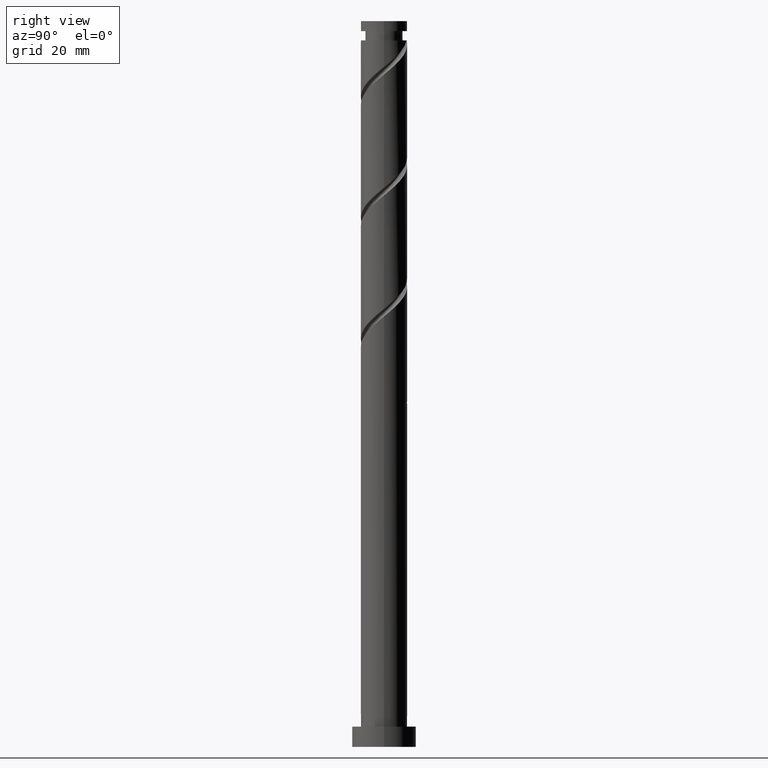
[diagram: clean part render]
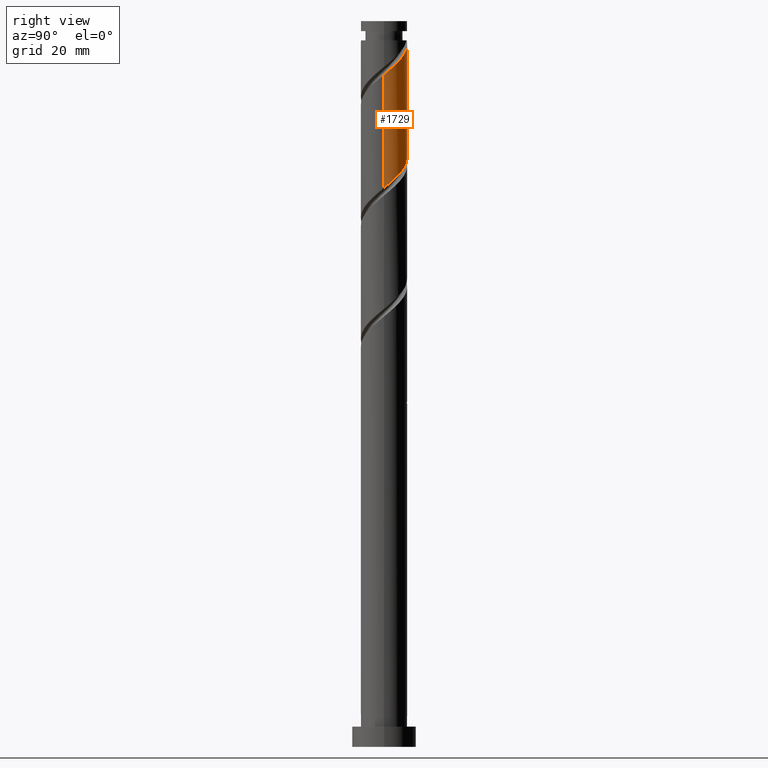
[diagram: same view with one face highlighted and labeled with its STEP entity id]
A machine part, right view. The second image highlights one B-rep face of the part: STEP entity #1729.
In plain terms, the highlighted cylindrical surface (edge-blend (fillet) strip) has radius 8 mm, axis along (-0, -0, -1).
Its self-contained STEP definition (entity closure, byte-faithful):
#110 = CARTESIAN_POINT ( 'NONE',  ( 8.000000000000001776, 0.6500515082963604918, 193.1168595104637973 ) ) ;
#117 = DIRECTION ( 'NONE',  ( -0.000000000000000000, -0.000000000000000000, -1.000000000000000000 ) ) ;
#129 = CARTESIAN_POINT ( 'NONE',  ( 7.356541166943314281, 3.143453842363254758, 195.2556471536338449 ) ) ;
#154 = CARTESIAN_POINT ( 'NONE',  ( 4.007267575056607356, 6.924002208397983082, 238.5248779228646185 ) ) ;
#257 = CARTESIAN_POINT ( 'NONE',  ( -0.3305149512138251811, 7.993169575770560975, 203.2684676664543417 ) ) ;
#273 = CYLINDRICAL_SURFACE ( 'NONE', #560, 8.000000000000000000 ) ;
#287 = CARTESIAN_POINT ( 'NONE',  ( 1.591979899370595364, 7.839999999999999858, 201.6659035638902253 ) ) ;
#289 =( BOUNDED_CURVE ( )  B_SPLINE_CURVE ( 2, ( #1422, #1574, #864, #851, #1431, #438, #424, #699, #1689, #294, #154, #872, #1816, #1438, #1717, #1282, #1272 ),
 .UNSPECIFIED., .F., .T. ) 
 B_SPLINE_CURVE_WITH_KNOTS ( ( 3, 2, 2, 2, 2, 2, 2, 2, 3 ),
 ( 0.6795271625973834384, 0.6826923076923077094, 0.6923076923076922906, 0.7019230769230768718, 0.7115384615384615641, 0.7211538461538461453, 0.7307692307692308376, 0.7403846153846154188, 0.7500000000000000000 ),
 .UNSPECIFIED. ) 
 CURVE ( )  GEOMETRIC_REPRESENTATION_ITEM ( )  RATIONAL_B_SPLINE_CURVE ( ( 0.9061636035682794077, 0.9069090390690679460, 0.9090909090909243817, 0.9024626128164281447, 0.9090909090909243817, 0.9024626128164281447, 0.9090909090909243817, 0.9024626128164281447, 0.9090909090909243817, 0.9024626128164281447, 0.9090909090909243817, 0.9024626128164281447, 0.9090909090909243817, 0.9024626128164281447, 0.9090909090909243817, 0.9024626128164281447, 0.9090909090909243817 ) ) 
 REPRESENTATION_ITEM ( '' )  );
#294 = CARTESIAN_POINT ( 'NONE',  ( 4.847993655035605087, 6.437431832132348042, 237.7235958715825461 ) ) ;
#295 = CARTESIAN_POINT ( 'NONE',  ( 7.895051195043946812, 1.291575250473281811, 193.6530830510697569 ) ) ;
#342 = CARTESIAN_POINT ( 'NONE',  ( -7.974729545032076317, 0.6353650002891837456, 212.8838522818389549 ) ) ;
#393 = CARTESIAN_POINT ( 'NONE',  ( -7.999999999999983125, 0.000000000000000000, 243.3325702305569109 ) ) ;
#399 = FACE_OUTER_BOUND ( 'NONE', #1793, .T. ) ;
#404 = CARTESIAN_POINT ( 'NONE',  ( -5.547845850269218282, 5.763801386381266489, 208.0761599741466341 ) ) ;
#410 = CARTESIAN_POINT ( 'NONE',  ( 0.000000000000000000, 0.000000000000000000, 250.0000000000000000 ) ) ;
#424 = CARTESIAN_POINT ( 'NONE',  ( 6.766003490263366338, 4.268629378353683279, 235.3197497177363857 ) ) ;
#425 = CARTESIAN_POINT ( 'NONE',  ( 0.6400315509080708454, 8.033301356631552537, 202.4671856151722977 ) ) ;
#438 = CARTESIAN_POINT ( 'NONE',  ( 7.284308935023878107, 3.447087816077164302, 234.5184676664543133 ) ) ;
#460 = CARTESIAN_POINT ( 'NONE',  ( 8.000000000000000000, 9.797174393178825657E-16, 250.0000000000000000 ) ) ;
#481 = CARTESIAN_POINT ( 'NONE',  ( -8.000000000000000000, -1.794712623994423078E-15, 213.4104921064487712 ) ) ;
#530 = CARTESIAN_POINT ( 'NONE',  ( -8.000000000000000000, -1.794712623994423078E-15, 213.4104921064487428 ) ) ;
#541 = CARTESIAN_POINT ( 'NONE',  ( 8.000000000000014211, 5.114930978384066843E-15, 231.5879816879983935 ) ) ;
#551 = CARTESIAN_POINT ( 'NONE',  ( 5.053057863439632591, 6.202145292455741199, 198.4607753587620493 ) ) ;
#560 = AXIS2_PLACEMENT_3D ( 'NONE', #410, #828, #1121 ) ;
#563 = CARTESIAN_POINT ( 'NONE',  ( -6.766003490263353903, 4.268629378353675285, 209.6787240767108074 ) ) ;
#569 = VERTEX_POINT ( 'NONE', #530 ) ;
#606 = EDGE_CURVE ( 'NONE', #1258, #1049, #289, .T. ) ;
#677 = CARTESIAN_POINT ( 'NONE',  ( -7.897582266626952396, 1.603672477308133004, 212.0825702305569109 ) ) ;
#691 = CARTESIAN_POINT ( 'NONE',  ( -7.590945600825408590, 2.525380146692649319, 211.2812881792748669 ) ) ;
#699 = CARTESIAN_POINT ( 'NONE',  ( 6.247698045502859010, 5.090170940630192042, 236.1210317690184297 ) ) ;
#700 = CARTESIAN_POINT ( 'NONE',  ( 8.000000000000000000, -8.734268103439527594E-15, 192.5771587731154284 ) ) ;
#798 = CARTESIAN_POINT ( 'NONE',  ( -8.000000000000000000, 0.000000000000000000, 250.0000000000000000 ) ) ;
#818 = ORIENTED_EDGE ( 'NONE', *, *, #1104, .F. ) ;
#825 = EDGE_CURVE ( 'NONE', #1258, #1532, #1720, .T. ) ;
#828 = DIRECTION ( 'NONE',  ( -0.000000000000000000, -0.000000000000000000, -1.000000000000000000 ) ) ;
#851 = CARTESIAN_POINT ( 'NONE',  ( 7.897582266626965719, 1.603672477308132560, 232.9159035638901969 ) ) ;
#864 = CARTESIAN_POINT ( 'NONE',  ( 7.974729545032094080, 0.6353650002891780835, 232.1146215126082382 ) ) ;
#872 = CARTESIAN_POINT ( 'NONE',  ( 3.166541495077610957, 7.410572584663614570, 239.3261599741466057 ) ) ;
#883 = DIRECTION ( 'NONE',  ( -0.000000000000000000, -0.000000000000000000, -1.000000000000000000 ) ) ;
#960 = CARTESIAN_POINT ( 'NONE',  ( -4.847993655035590876, 6.437431832132343601, 207.2748779228646470 ) ) ;
#972 = CARTESIAN_POINT ( 'NONE',  ( 6.974856767235934285, 4.036699660509708742, 196.0569292049158605 ) ) ;
#977 = ORIENTED_EDGE ( 'NONE', *, *, #606, .F. ) ;
#989 = CARTESIAN_POINT ( 'NONE',  ( 4.299981081797046301, 6.815697599571421961, 199.2620574100441218 ) ) ;
#998 = CARTESIAN_POINT ( 'NONE',  ( 6.390495706159073919, 4.812646322924886810, 196.8582112561979329 ) ) ;
#1012 = VECTOR ( 'NONE', #883, 1000.000000000000000 ) ;
#1049 = VERTEX_POINT ( 'NONE', #1638 ) ;
#1097 = AXIS2_PLACEMENT_3D ( 'NONE', #1133, #117, #1380 ) ;
#1104 = EDGE_CURVE ( 'NONE', #1399, #569, #1216, .T. ) ;
#1121 = DIRECTION ( 'NONE',  ( -1.000000000000000000, 0.000000000000000000, 0.000000000000000000 ) ) ;
#1133 = CARTESIAN_POINT ( 'NONE',  ( 0.000000000000000000, 0.000000000000000000, 243.3325702305569109 ) ) ;
#1216 = LINE ( 'NONE', #798, #1426 ) ;
#1227 = EDGE_CURVE ( 'NONE', #569, #1532, #1262, .T. ) ;
#1258 = VERTEX_POINT ( 'NONE', #541 ) ;
#1262 =( BOUNDED_CURVE ( )  B_SPLINE_CURVE ( 2, ( #481, #1617, #342, #677, #691, #1669, #563, #1690, #404, #960, #1535, #1432, #1527, #1415, #257, #425, #287, #1681, #1566, #989, #551, #1273, #998, #972, #129, #1406, #295, #110, #700 ),
 .UNSPECIFIED., .F., .T. ) 
 B_SPLINE_CURVE_WITH_KNOTS ( ( 3, 2, 2, 2, 2, 2, 2, 2, 2, 2, 2, 2, 2, 2, 3 ),
 ( 0.4295271625973832164, 0.4326923076923077094, 0.4423076923076922906, 0.4519230769230769273, 0.4615384615384615641, 0.4711538461538461453, 0.4807692307692307820, 0.4903846153846153633, 0.5000000000000000000, 0.5096153846153845812, 0.5192307692307692735, 0.5288461538461538547, 0.5384615384615384359, 0.5480769230769231282, 0.5545271625973833274 ),
 .UNSPECIFIED. ) 
 CURVE ( )  GEOMETRIC_REPRESENTATION_ITEM ( )  RATIONAL_B_SPLINE_CURVE ( ( 0.9061636035682724133, 0.9069090390690610626, 0.9090909090909177204, 0.9024626128164211503, 0.9090909090909177204, 0.9024626128164211503, 0.9090909090909177204, 0.9024626128164211503, 0.9090909090909177204, 0.9024626128164211503, 0.9090909090909177204, 0.9024626128164211503, 0.9090909090909177204, 0.9024626128164211503, 0.9090909090909177204, 0.9024626128164211503, 0.9090909090909177204, 0.9024626128164211503, 0.9090909090909177204, 0.9024626128164211503, 0.9090909090909177204, 0.9024626128164211503, 0.9090909090909177204, 0.9024626128164211503, 0.9090909090909177204, 0.9024626128164211503, 0.9090909090909177204, 0.9046444828382775860, 0.9061636035682724133 ) ) 
 REPRESENTATION_ITEM ( '' )  );
#1272 = CARTESIAN_POINT ( 'NONE',  ( -1.591979899370584706, 7.839999999999547775, 243.3325702305568825 ) ) ;
#1273 = CARTESIAN_POINT ( 'NONE',  ( 5.806134645082211776, 5.588592985340064878, 197.6594933074799485 ) ) ;
#1282 = CARTESIAN_POINT ( 'NONE',  ( -0.6400315509080659604, 8.033301356631564971, 242.5312881792748669 ) ) ;
#1321 = ORIENTED_EDGE ( 'NONE', *, *, #1227, .F. ) ;
#1380 = DIRECTION ( 'NONE',  ( -1.000000000000000000, 0.000000000000000000, 0.000000000000000000 ) ) ;
#1399 = VERTEX_POINT ( 'NONE', #393 ) ;
#1406 = CARTESIAN_POINT ( 'NONE',  ( 7.738225566650696052, 2.250208024216790559, 194.4543651023518009 ) ) ;
#1415 = CARTESIAN_POINT ( 'NONE',  ( -1.301061453335721207, 7.953037794909570302, 204.0697497177363857 ) ) ;
#1422 = CARTESIAN_POINT ( 'NONE',  ( 8.000000000000014211, 5.114930978384067632E-15, 231.5879816879983935 ) ) ;
#1426 = VECTOR ( 'NONE', #1773, 1000.000000000000000 ) ;
#1431 = CARTESIAN_POINT ( 'NONE',  ( 7.590945600825421913, 2.525380146692645766, 233.7171856151723546 ) ) ;
#1432 = CARTESIAN_POINT ( 'NONE',  ( -3.166541495077603852, 7.410572584663606577, 205.6723138203005021 ) ) ;
#1438 = CARTESIAN_POINT ( 'NONE',  ( 1.301061453335727203, 7.953037794909581848, 240.9287240767106653 ) ) ;
#1460 = CARTESIAN_POINT ( 'NONE',  ( 8.000000000000000000, -8.734268103439527594E-15, 192.5771587731154284 ) ) ;
#1527 = CARTESIAN_POINT ( 'NONE',  ( -2.233801474206662085, 7.681805189786587107, 204.8710317690184581 ) ) ;
#1532 = VERTEX_POINT ( 'NONE', #1460 ) ;
#1535 = CARTESIAN_POINT ( 'NONE',  ( -4.007267575056594922, 6.924002208397974201, 206.4735958715824893 ) ) ;
#1540 = CIRCLE ( 'NONE', #1097, 7.999999999999983125 ) ;
#1566 = CARTESIAN_POINT ( 'NONE',  ( 3.421954664815087366, 7.231198121469931905, 200.0633394613261657 ) ) ;
#1574 = CARTESIAN_POINT ( 'NONE',  ( 8.000000000000014211, 0.3181850426941555954, 231.8521526036313389 ) ) ;
#1602 = ORIENTED_EDGE ( 'NONE', *, *, #1783, .T. ) ;
#1617 = CARTESIAN_POINT ( 'NONE',  ( -8.000000000000001776, 0.3181850426941397192, 213.1463211908158257 ) ) ;
#1638 = CARTESIAN_POINT ( 'NONE',  ( -1.591979899370584706, 7.839999999999546887, 243.3325702305568825 ) ) ;
#1669 = CARTESIAN_POINT ( 'NONE',  ( -7.284308935023863896, 3.447087816077163858, 210.4800061279927945 ) ) ;
#1678 = ORIENTED_EDGE ( 'NONE', *, *, #825, .T. ) ;
#1681 = CARTESIAN_POINT ( 'NONE',  ( 2.543928247833120437, 7.646698643368446291, 200.8646215126081813 ) ) ;
#1689 = CARTESIAN_POINT ( 'NONE',  ( 5.547845850269232493, 5.763801386381272707, 236.9223138203005021 ) ) ;
#1690 = CARTESIAN_POINT ( 'NONE',  ( -6.247698045502846576, 5.090170940630189378, 208.8774420254287065 ) ) ;
#1717 = CARTESIAN_POINT ( 'NONE',  ( 0.3305149512138344514, 7.993169575770573410, 241.7300061279928229 ) ) ;
#1720 = LINE ( 'NONE', #460, #1012 ) ;
#1729 = ADVANCED_FACE ( 'NONE', ( #399 ), #273, .T. ) ;
#1773 = DIRECTION ( 'NONE',  ( -0.000000000000000000, -0.000000000000000000, -1.000000000000000000 ) ) ;
#1783 = EDGE_CURVE ( 'NONE', #1399, #1049, #1540, .T. ) ;
#1793 = EDGE_LOOP ( 'NONE', ( #977, #1678, #1321, #818, #1602 ) ) ;
#1816 = CARTESIAN_POINT ( 'NONE',  ( 2.233801474206672744, 7.681805189786598653, 240.1274420254287065 ) ) ;